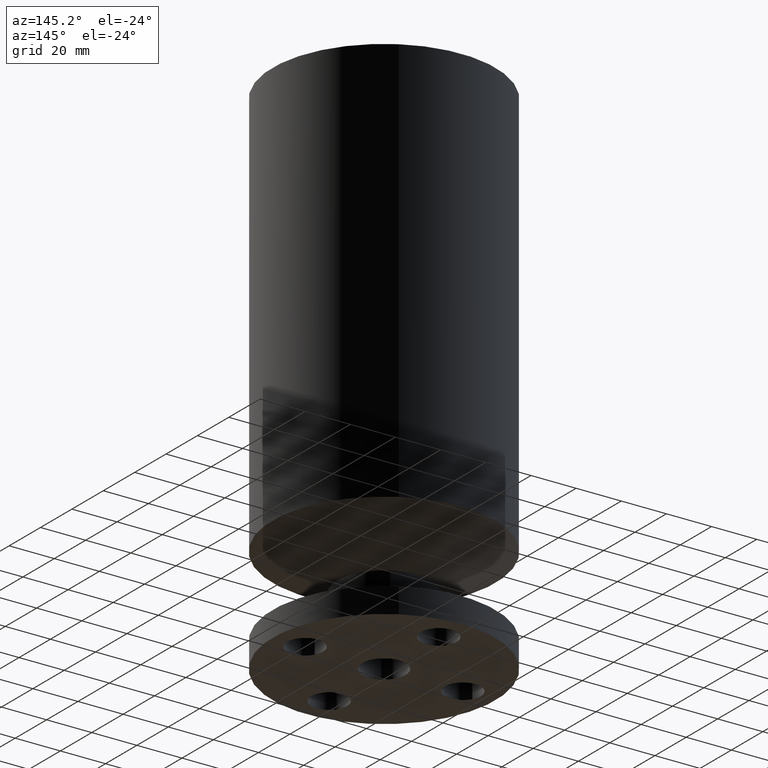
[diagram: clean part render]
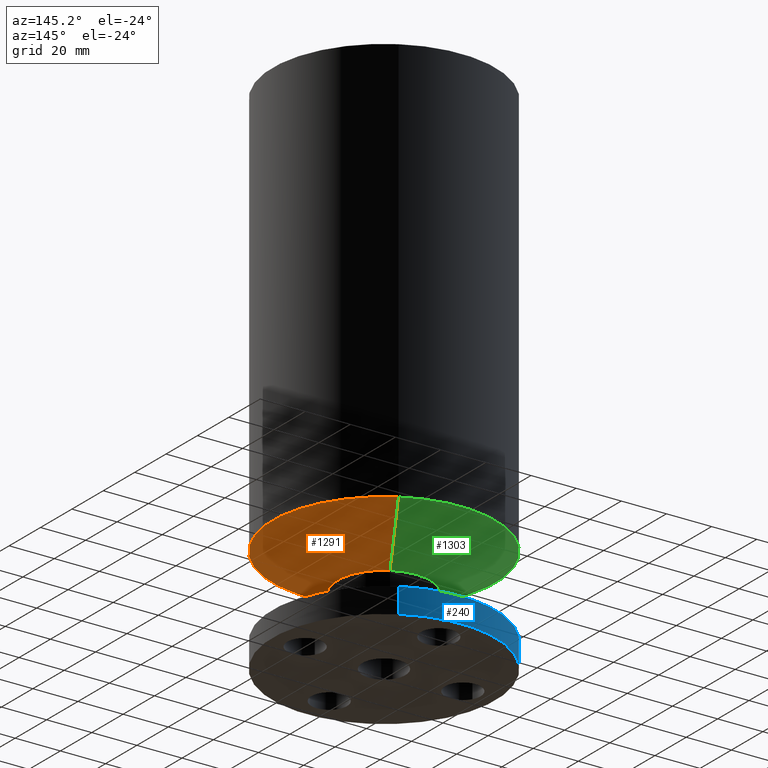
[diagram: same view with three faces highlighted in distinct colors, each labeled with its STEP entity id]
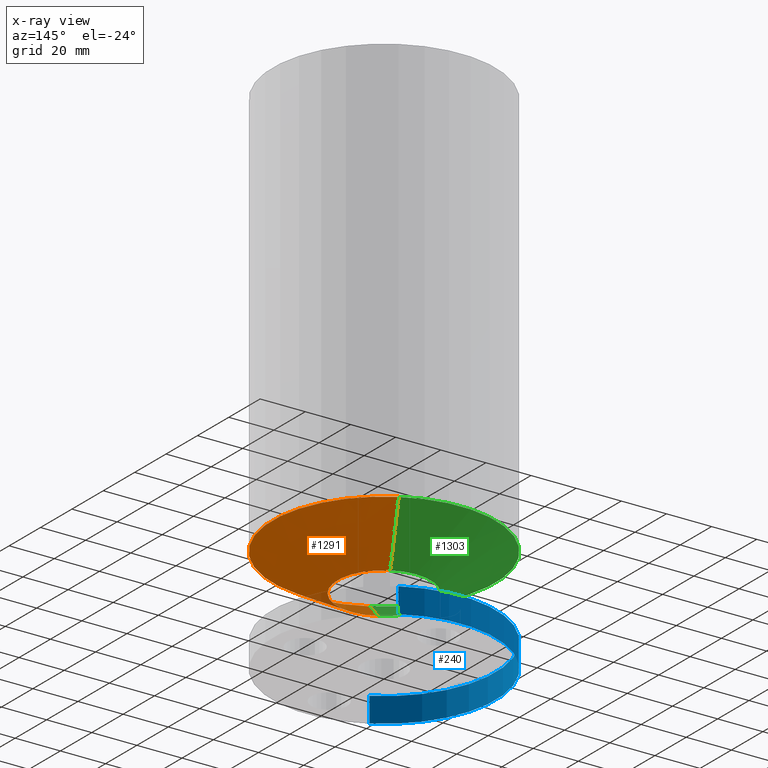
[diagram: x-ray of the same camera — body ghosted, the three highlighted faces saturated]
A machine part, auxiliary view with three faces highlighted in distinct colors.
The next image is the same camera in x-ray (body ghosted, the three faces saturated) — at least one of them is partly hidden behind the body in this view.
Their STEP definitions:

[orange] entity #1291 — the highlighted conical surface has half-angle 60 deg.
#719=AXIS2_PLACEMENT_3D('Circle Axis2P3D',#717,#718,$) ;
#1264=AXIS2_PLACEMENT_3D('Cone Axis2P3D',#1261,#1262,#1263) ;
#1275=AXIS2_PLACEMENT_3D('Circle Axis2P3D',#1273,#1274,$) ;
#714=CARTESIAN_POINT('Vertex',(0.388334686271,0.710841875134,1.1875)) ;
#717=CARTESIAN_POINT('Axis2P3D Location',(0.,0.,1.1875)) ;
#721=CARTESIAN_POINT('Vertex',(-0.388334686271,-0.710841875134,1.1875)) ;
#1261=CARTESIAN_POINT('Axis2P3D Location',(0.,0.,1.1875)) ;
#1266=CARTESIAN_POINT('Line Origine',(0.659210115583,1.2066760226,1.5137029021)) ;
#1270=CARTESIAN_POINT('Vertex',(0.930085544896,1.70251017007,1.83990580419)) ;
#1273=CARTESIAN_POINT('Axis2P3D Location',(0.,0.,1.83990580419)) ;
#1277=CARTESIAN_POINT('Vertex',(-0.930085544896,-1.70251017007,1.83990580419)) ;
#1280=CARTESIAN_POINT('Line Origine',(-0.659210115583,-1.2066760226,1.5137029021)) ;
#718=DIRECTION('Axis2P3D Direction',(0.,0.,-0.0393700787402)) ;
#1262=DIRECTION('Axis2P3D Direction',(-0.,-0.,0.0393700787402)) ;
#1263=DIRECTION('Axis2P3D XDirection',(0.0188750212049,0.0345504945626,0.)) ;
#1267=DIRECTION('Vector Direction',(0.0163462478604,0.0299216060045,0.0196850393701)) ;
#1274=DIRECTION('Axis2P3D Direction',(-0.,0.,0.0393700787402)) ;
#1281=DIRECTION('Vector Direction',(-0.0163462478604,-0.0299216060045,0.0196850393701)) ;
#1268=VECTOR('Line Direction',#1267,0.0393700787402) ;
#1282=VECTOR('Line Direction',#1281,0.0393700787402) ;
#1286=ORIENTED_EDGE('',*,*,#723,.F.) ;
#1287=ORIENTED_EDGE('',*,*,#1272,.T.) ;
#1288=ORIENTED_EDGE('',*,*,#1279,.T.) ;
#1289=ORIENTED_EDGE('',*,*,#1284,.F.) ;
#1291=ADVANCED_FACE('PartBody',(#1290),#1265,.T.) ;
#720=CIRCLE('generated circle',#719,0.810000000003) ;
#1276=CIRCLE('generated circle',#1275,1.94000000001) ;
#1265=CONICAL_SURFACE('Cone',#1264,0.810000000003,1.0471975512) ;
#723=EDGE_CURVE('',#715,#722,#720,.T.) ;
#1272=EDGE_CURVE('',#715,#1271,#1269,.T.) ;
#1279=EDGE_CURVE('',#1271,#1278,#1276,.F.) ;
#1284=EDGE_CURVE('',#722,#1278,#1283,.T.) ;
#1285=EDGE_LOOP('',(#1286,#1287,#1288,#1289)) ;
#1290=FACE_OUTER_BOUND('',#1285,.T.) ;
#1269=LINE('Line',#1266,#1268) ;
#1283=LINE('Line',#1280,#1282) ;
#715=VERTEX_POINT('',#714) ;
#722=VERTEX_POINT('',#721) ;
#1271=VERTEX_POINT('',#1270) ;
#1278=VERTEX_POINT('',#1277) ;

[blue] entity #240 — the highlighted cylindrical surface (partial cylindrical patch) has radius 49.276 mm, axis along (0, 0, -1).
#91=AXIS2_PLACEMENT_3D('Circle Axis2P3D',#89,#90,$) ;
#213=AXIS2_PLACEMENT_3D('Cylinder Axis2P3D',#210,#211,#212) ;
#217=AXIS2_PLACEMENT_3D('Circle Axis2P3D',#215,#216,$) ;
#84=CARTESIAN_POINT('Vertex',(0.930085544896,1.70251017007,0.437500000002)) ;
#86=CARTESIAN_POINT('Vertex',(-0.930085544896,-1.70251017007,0.437500000002)) ;
#89=CARTESIAN_POINT('Axis2P3D Location',(0.,0.,0.437500000002)) ;
#210=CARTESIAN_POINT('Axis2P3D Location',(0.,0.,4.43750000002)) ;
#215=CARTESIAN_POINT('Axis2P3D Location',(0.,0.,0.)) ;
#219=CARTESIAN_POINT('Vertex',(-0.930085544896,-1.70251017007,0.)) ;
#221=CARTESIAN_POINT('Vertex',(0.930085544896,1.70251017007,0.)) ;
#224=CARTESIAN_POINT('Line Origine',(-0.930085544896,-1.70251017007,5.38870290211)) ;
#229=CARTESIAN_POINT('Line Origine',(0.930085544896,1.70251017007,5.38870290211)) ;
#90=DIRECTION('Axis2P3D Direction',(0.,0.,-0.0393700787402)) ;
#211=DIRECTION('Axis2P3D Direction',(0.,0.,-0.0393700787402)) ;
#212=DIRECTION('Axis2P3D XDirection',(-0.0188750212049,-0.0345504945626,0.)) ;
#216=DIRECTION('Axis2P3D Direction',(0.,0.,-0.0393700787402)) ;
#225=DIRECTION('Vector Direction',(0.,0.,-0.0393700787402)) ;
#230=DIRECTION('Vector Direction',(0.,0.,-0.0393700787402)) ;
#226=VECTOR('Line Direction',#225,0.0393700787402) ;
#231=VECTOR('Line Direction',#230,0.0393700787402) ;
#235=ORIENTED_EDGE('',*,*,#223,.F.) ;
#236=ORIENTED_EDGE('',*,*,#228,.T.) ;
#237=ORIENTED_EDGE('',*,*,#93,.T.) ;
#238=ORIENTED_EDGE('',*,*,#233,.F.) ;
#240=ADVANCED_FACE('PartBody',(#239),#214,.T.) ;
#92=CIRCLE('generated circle',#91,1.94000000001) ;
#218=CIRCLE('generated circle',#217,1.94000000001) ;
#214=CYLINDRICAL_SURFACE('generated cylinder',#213,1.94000000001) ;
#93=EDGE_CURVE('',#87,#85,#92,.T.) ;
#223=EDGE_CURVE('',#220,#222,#218,.T.) ;
#228=EDGE_CURVE('',#220,#87,#227,.F.) ;
#233=EDGE_CURVE('',#222,#85,#232,.F.) ;
#234=EDGE_LOOP('',(#235,#236,#237,#238)) ;
#239=FACE_OUTER_BOUND('',#234,.T.) ;
#227=LINE('Line',#224,#226) ;
#232=LINE('Line',#229,#231) ;
#85=VERTEX_POINT('',#84) ;
#87=VERTEX_POINT('',#86) ;
#220=VERTEX_POINT('',#219) ;
#222=VERTEX_POINT('',#221) ;

[green] entity #1303 — the highlighted conical surface has half-angle 60 deg.
#738=AXIS2_PLACEMENT_3D('Circle Axis2P3D',#736,#737,$) ;
#1264=AXIS2_PLACEMENT_3D('Cone Axis2P3D',#1261,#1262,#1263) ;
#1294=AXIS2_PLACEMENT_3D('Circle Axis2P3D',#1292,#1293,$) ;
#714=CARTESIAN_POINT('Vertex',(0.388334686271,0.710841875134,1.1875)) ;
#721=CARTESIAN_POINT('Vertex',(-0.388334686271,-0.710841875134,1.1875)) ;
#736=CARTESIAN_POINT('Axis2P3D Location',(0.,0.,1.1875)) ;
#1261=CARTESIAN_POINT('Axis2P3D Location',(0.,0.,1.1875)) ;
#1266=CARTESIAN_POINT('Line Origine',(0.659210115583,1.2066760226,1.5137029021)) ;
#1270=CARTESIAN_POINT('Vertex',(0.930085544896,1.70251017007,1.83990580419)) ;
#1277=CARTESIAN_POINT('Vertex',(-0.930085544896,-1.70251017007,1.83990580419)) ;
#1280=CARTESIAN_POINT('Line Origine',(-0.659210115583,-1.2066760226,1.5137029021)) ;
#1292=CARTESIAN_POINT('Axis2P3D Location',(0.,0.,1.83990580419)) ;
#737=DIRECTION('Axis2P3D Direction',(0.,0.,-0.0393700787402)) ;
#1262=DIRECTION('Axis2P3D Direction',(-0.,-0.,0.0393700787402)) ;
#1263=DIRECTION('Axis2P3D XDirection',(0.0188750212049,0.0345504945626,0.)) ;
#1267=DIRECTION('Vector Direction',(0.0163462478604,0.0299216060045,0.0196850393701)) ;
#1281=DIRECTION('Vector Direction',(-0.0163462478604,-0.0299216060045,0.0196850393701)) ;
#1293=DIRECTION('Axis2P3D Direction',(-0.,0.,0.0393700787402)) ;
#1268=VECTOR('Line Direction',#1267,0.0393700787402) ;
#1282=VECTOR('Line Direction',#1281,0.0393700787402) ;
#1298=ORIENTED_EDGE('',*,*,#740,.F.) ;
#1299=ORIENTED_EDGE('',*,*,#1284,.T.) ;
#1300=ORIENTED_EDGE('',*,*,#1296,.T.) ;
#1301=ORIENTED_EDGE('',*,*,#1272,.F.) ;
#1303=ADVANCED_FACE('PartBody',(#1302),#1265,.T.) ;
#739=CIRCLE('generated circle',#738,0.810000000003) ;
#1295=CIRCLE('generated circle',#1294,1.94000000001) ;
#1265=CONICAL_SURFACE('Cone',#1264,0.810000000003,1.0471975512) ;
#740=EDGE_CURVE('',#722,#715,#739,.T.) ;
#1272=EDGE_CURVE('',#715,#1271,#1269,.T.) ;
#1284=EDGE_CURVE('',#722,#1278,#1283,.T.) ;
#1296=EDGE_CURVE('',#1278,#1271,#1295,.F.) ;
#1297=EDGE_LOOP('',(#1298,#1299,#1300,#1301)) ;
#1302=FACE_OUTER_BOUND('',#1297,.T.) ;
#1269=LINE('Line',#1266,#1268) ;
#1283=LINE('Line',#1280,#1282) ;
#715=VERTEX_POINT('',#714) ;
#722=VERTEX_POINT('',#721) ;
#1271=VERTEX_POINT('',#1270) ;
#1278=VERTEX_POINT('',#1277) ;